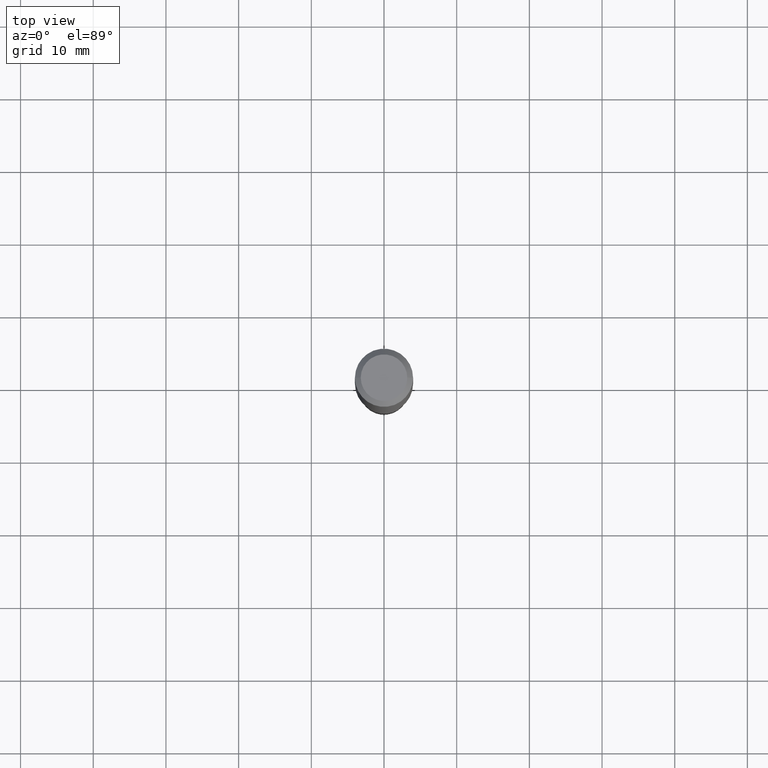
[diagram: clean part render]
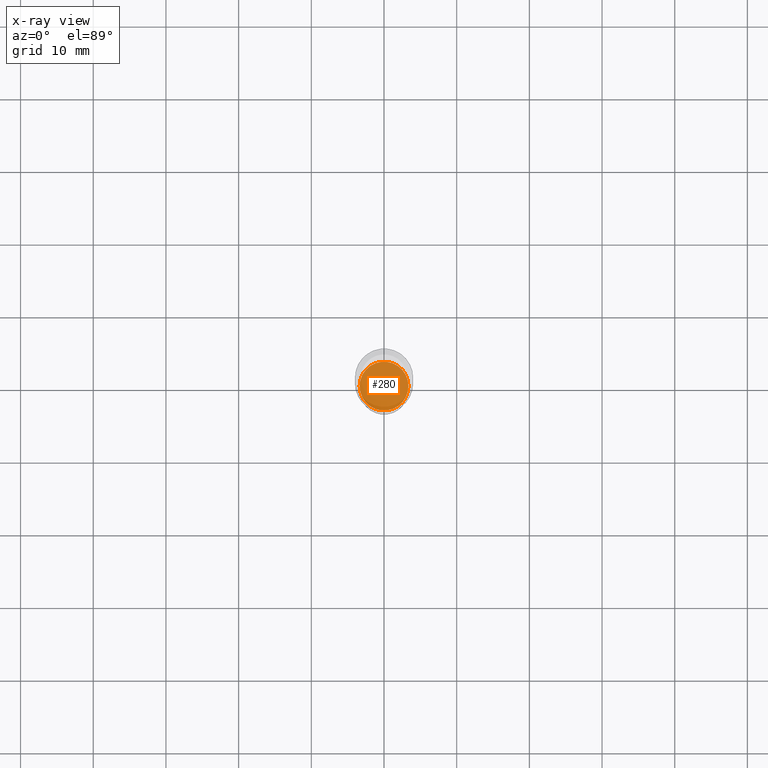
[diagram: x-ray — body ghosted, one internal face saturated and labeled with its STEP entity id]
A machine part, top view, then the same camera in x-ray: the body is ghosted and one INTERNAL B-rep face — a face not visible from any outside direction — is saturated and labeled: STEP entity #280.
In plain terms, the highlighted planar face has unit normal (-0, 0, 1).
Its self-contained STEP definition (entity closure, byte-faithful):
#4 = DIRECTION ( 'NONE',  ( 1.000000000000000000, -6.982962677686260400E-15, 0.000000000000000000 ) ) ;
#30 = CARTESIAN_POINT ( 'NONE',  ( -0.1323000000000000009, -8.302745318671926953E-15, -2.648000000000000131 ) ) ;
#34 = DIRECTION ( 'NONE',  ( 1.000000000000000000, -6.982962677686260400E-15, 0.000000000000000000 ) ) ;
#41 = DIRECTION ( 'NONE',  ( -2.445468806185136597E-29, 3.491481338843145583E-15, 1.000000000000000000 ) ) ;
#49 = FACE_OUTER_BOUND ( 'NONE', #468, .T. ) ;
#71 = EDGE_CURVE ( 'NONE', #285, #414, #92, .T. ) ;
#73 = DIRECTION ( 'NONE',  ( 1.000000000000000000, -6.982962677686265922E-15, 4.876176775795935793E-29 ) ) ;
#92 = CIRCLE ( 'NONE', #119, 0.1323000000000000009 ) ;
#116 = PLANE ( 'NONE',  #263 ) ;
#119 = AXIS2_PLACEMENT_3D ( 'NONE', #258, #512, #34 ) ;
#194 = ORIENTED_EDGE ( 'NONE', *, *, #220, .F. ) ;
#210 = ORIENTED_EDGE ( 'NONE', *, *, #71, .F. ) ;
#220 = EDGE_CURVE ( 'NONE', #414, #285, #327, .T. ) ;
#258 = CARTESIAN_POINT ( 'NONE',  ( 6.475601398778242345E-29, -9.245442585256650509E-15, -2.648000000000000131 ) ) ;
#263 = AXIS2_PLACEMENT_3D ( 'NONE', #273, #439, #73 ) ;
#273 = CARTESIAN_POINT ( 'NONE',  ( 6.475601398778242345E-29, -9.245442585256650509E-15, -2.648000000000000131 ) ) ;
#280 = ADVANCED_FACE ( 'NONE', ( #49 ), #116, .F. ) ;
#285 = VERTEX_POINT ( 'NONE', #317 ) ;
#317 = CARTESIAN_POINT ( 'NONE',  ( 0.1323000000000000009, -1.016928854751454175E-14, -2.648000000000000131 ) ) ;
#327 = CIRCLE ( 'NONE', #400, 0.1323000000000000009 ) ;
#400 = AXIS2_PLACEMENT_3D ( 'NONE', #477, #41, #4 ) ;
#414 = VERTEX_POINT ( 'NONE', #30 ) ;
#439 = DIRECTION ( 'NONE',  ( -2.438088387897960049E-29, 3.491481338843145188E-15, 1.000000000000000000 ) ) ;
#468 = EDGE_LOOP ( 'NONE', ( #210, #194 ) ) ;
#477 = CARTESIAN_POINT ( 'NONE',  ( 6.475601398778242345E-29, -9.245442585256650509E-15, -2.648000000000000131 ) ) ;
#512 = DIRECTION ( 'NONE',  ( -2.445468806185136597E-29, 3.491481338843145583E-15, 1.000000000000000000 ) ) ;